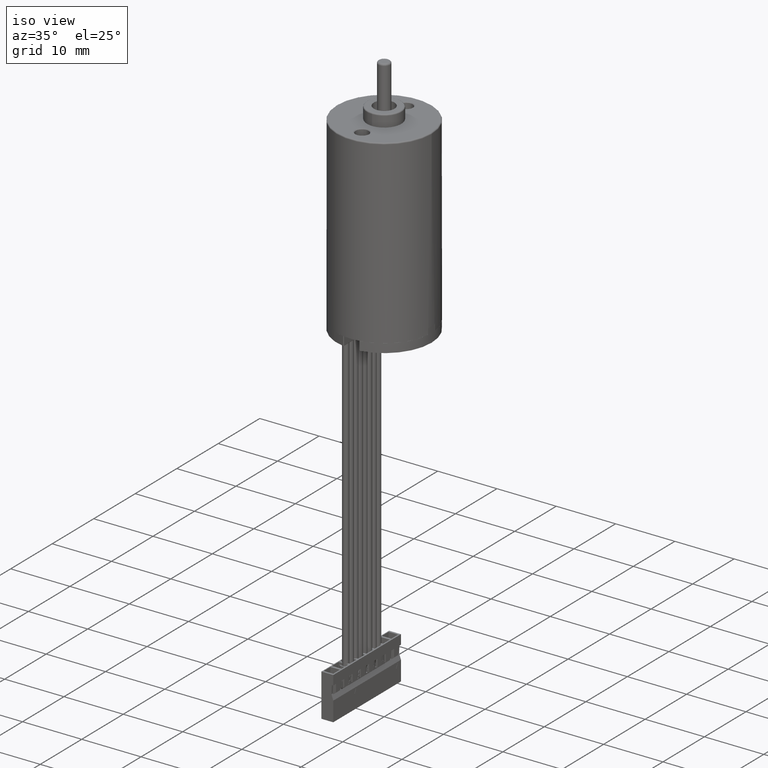
[diagram: clean part render]
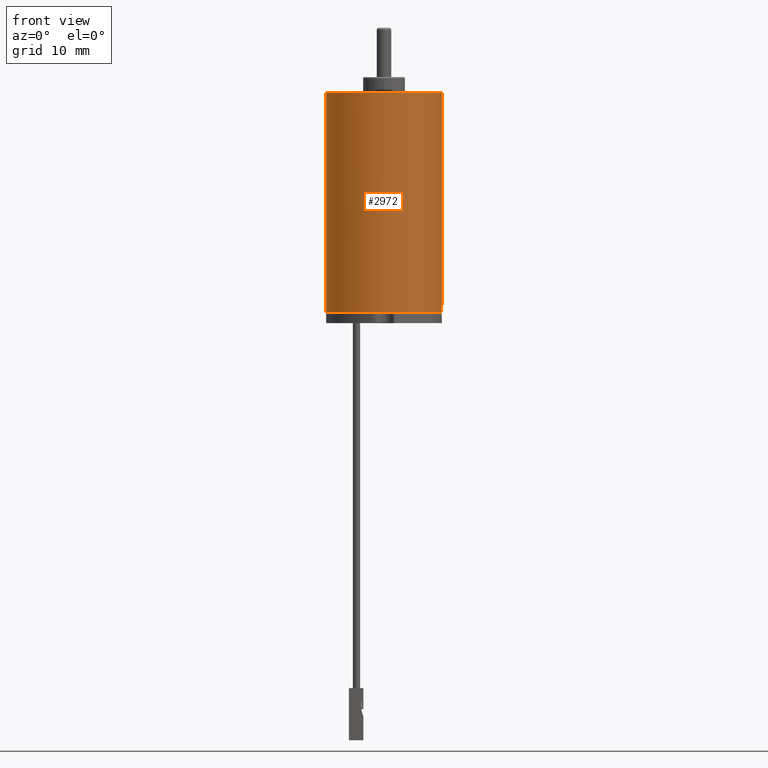
[diagram: tour spotlight — one face highlighted and labeled with its STEP entity id]
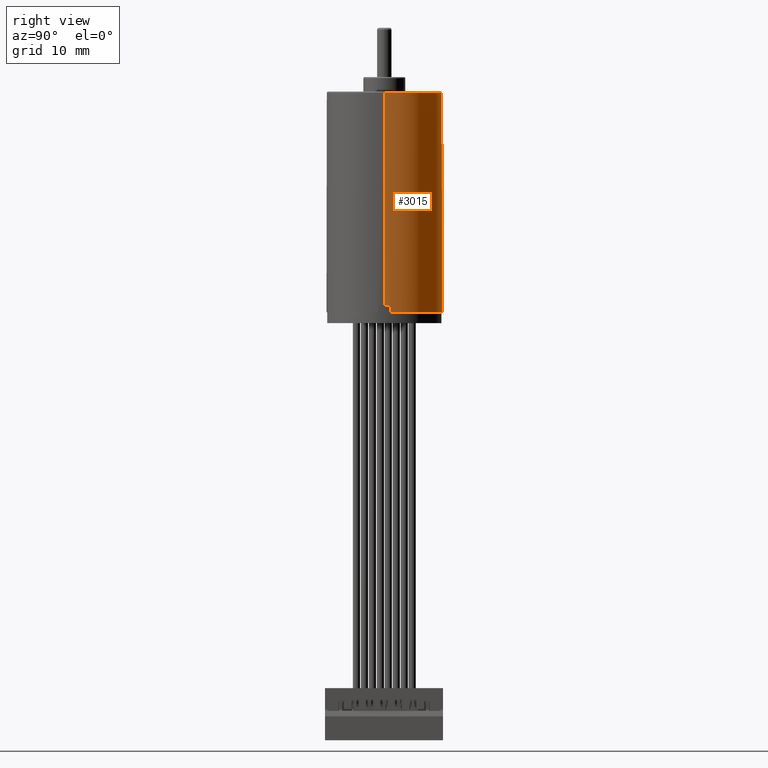
[diagram: tour spotlight — one face highlighted and labeled with its STEP entity id]
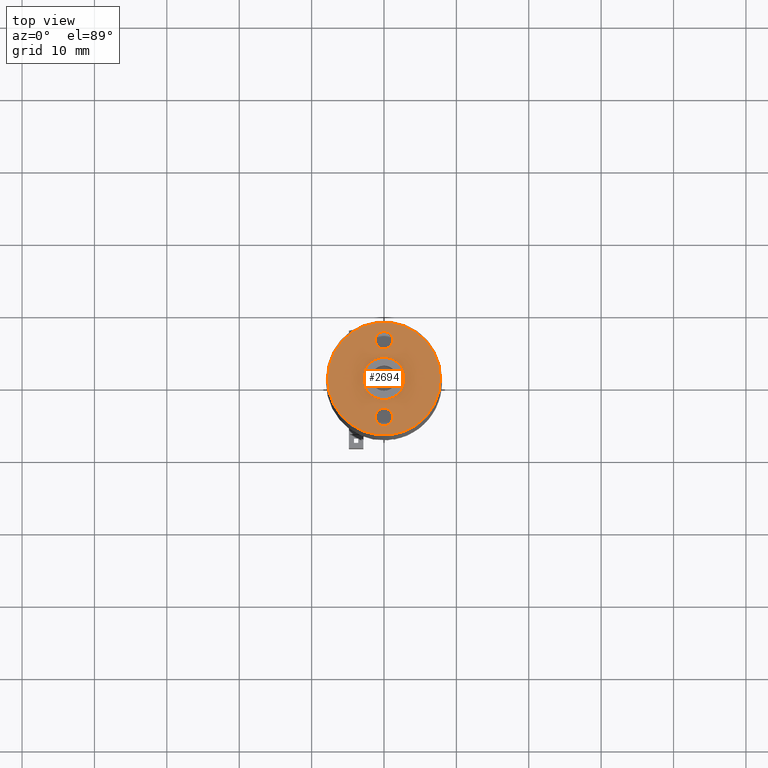
[diagram: tour spotlight — one face highlighted and labeled with its STEP entity id]
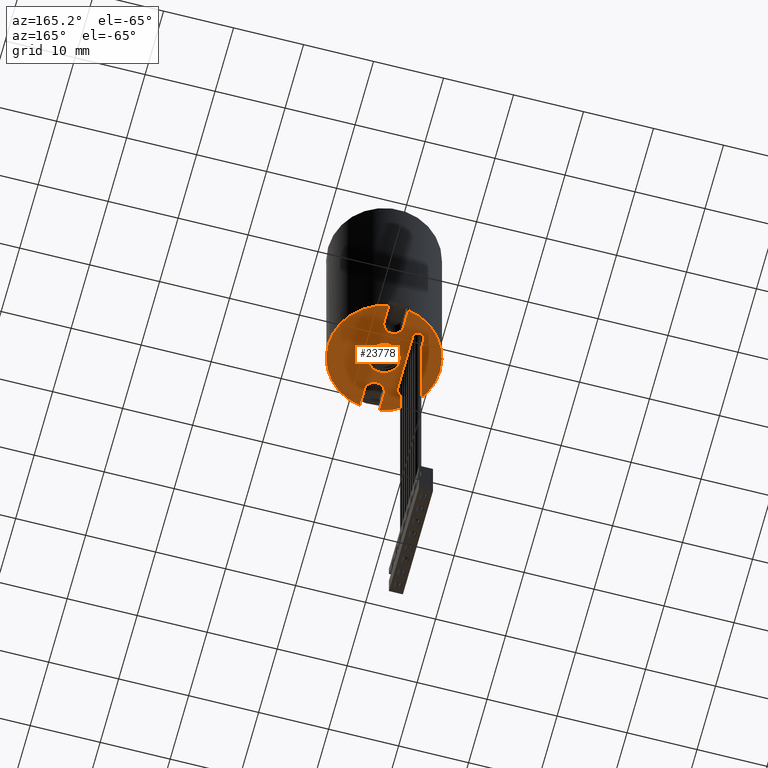
[diagram: tour spotlight — one face highlighted and labeled with its STEP entity id]
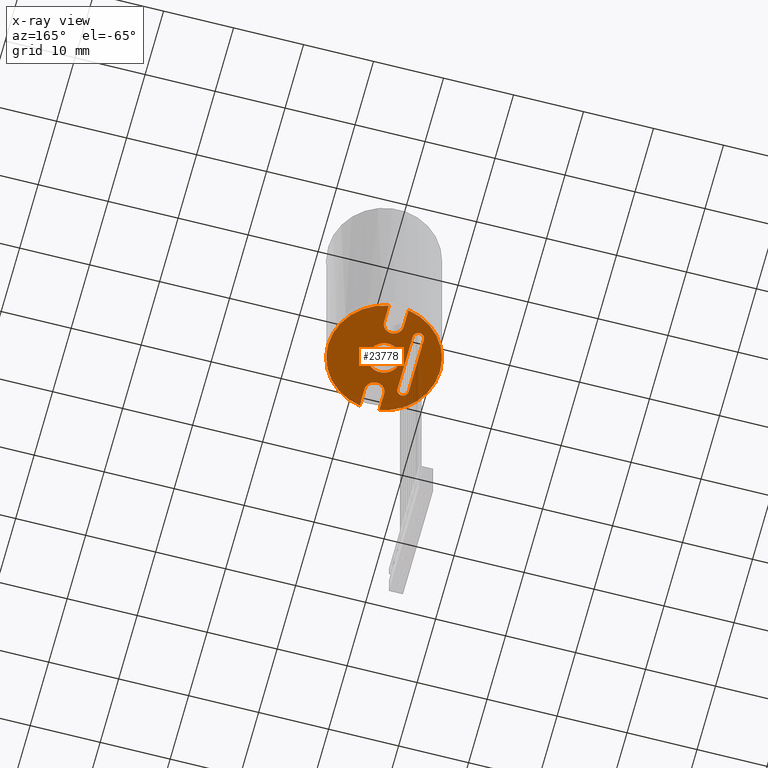
[diagram: x-ray of the same camera — body ghosted, this tour face saturated]
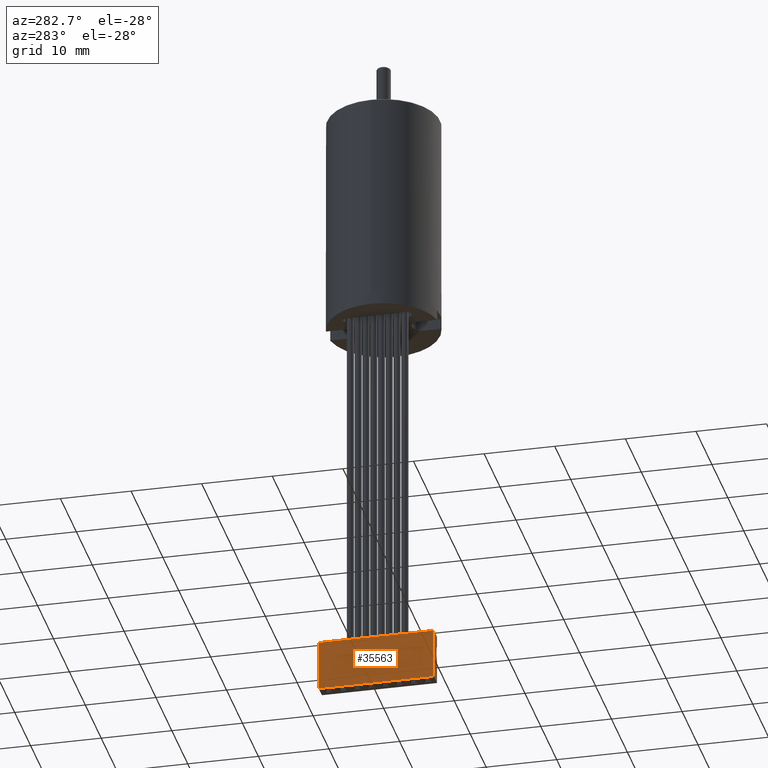
[diagram: tour spotlight — one face highlighted and labeled with its STEP entity id]
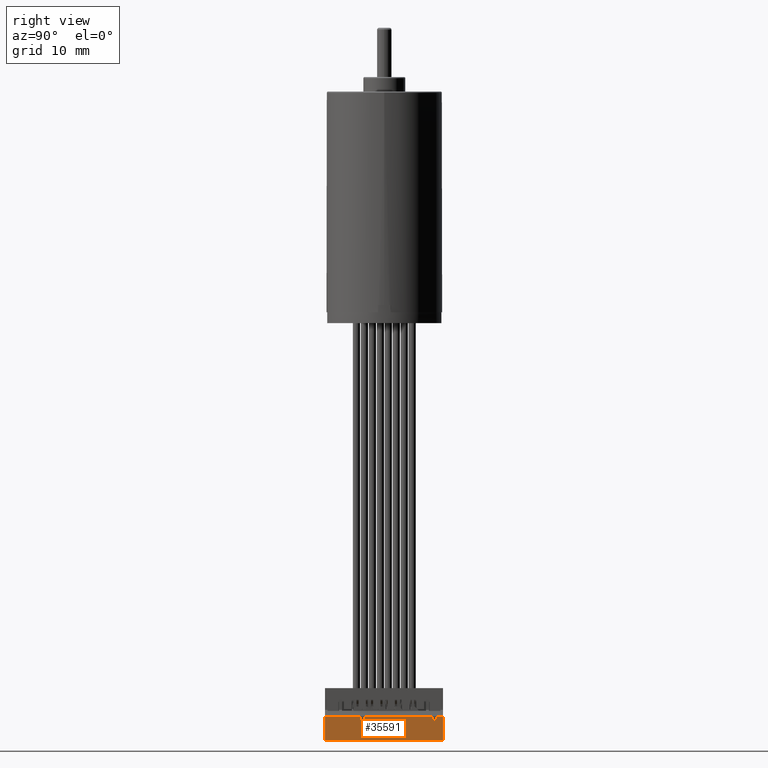
[diagram: tour spotlight — one face highlighted and labeled with its STEP entity id]
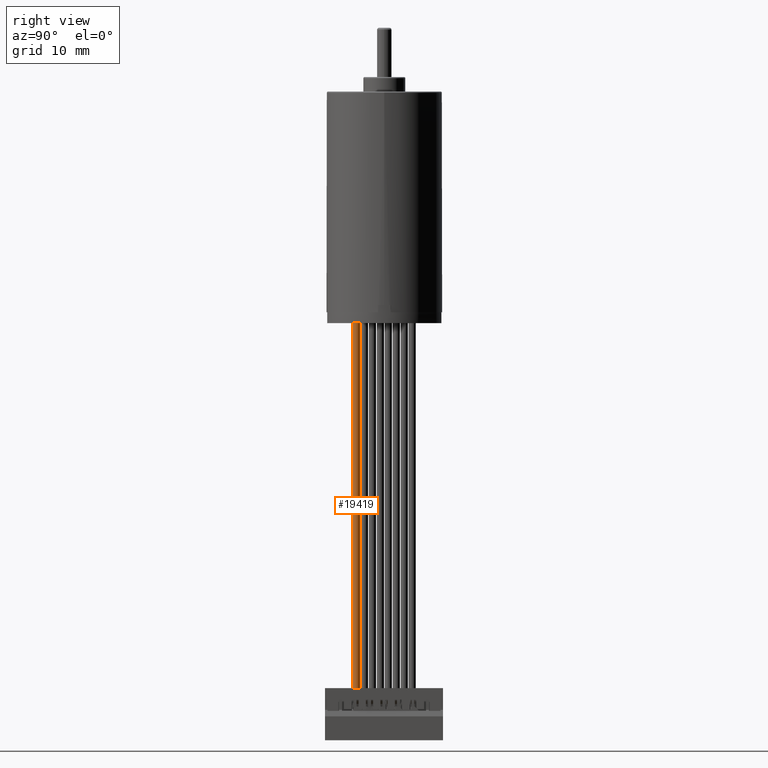
[diagram: tour spotlight — one face highlighted and labeled with its STEP entity id]
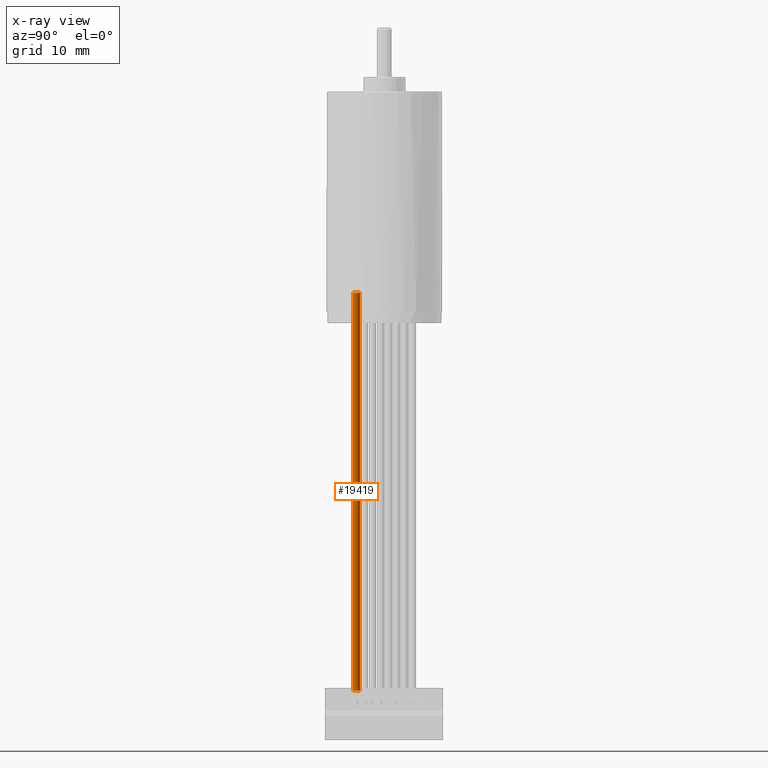
[diagram: x-ray of the same camera — body ghosted, this tour face saturated]
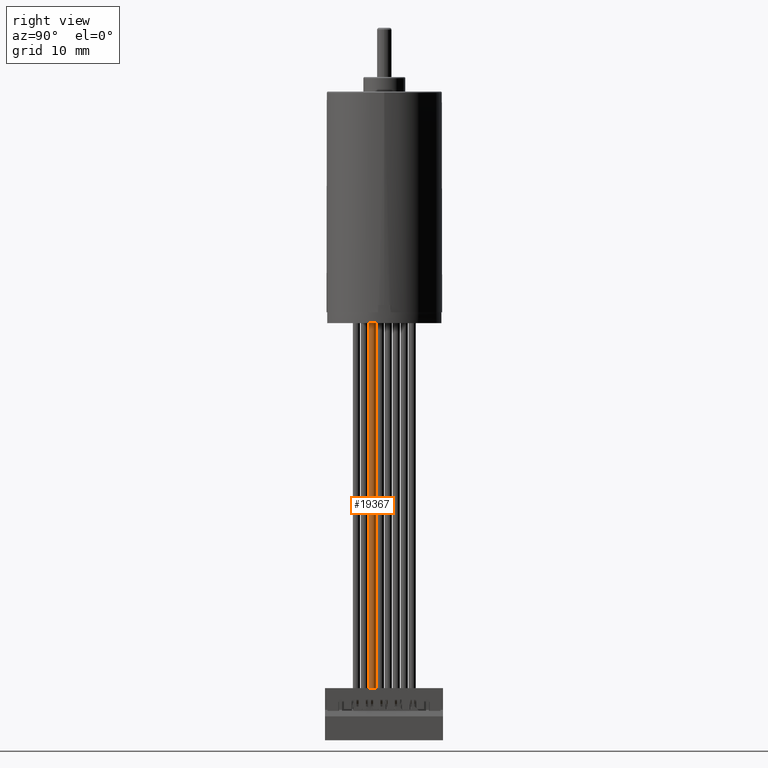
[diagram: tour spotlight — one face highlighted and labeled with its STEP entity id]
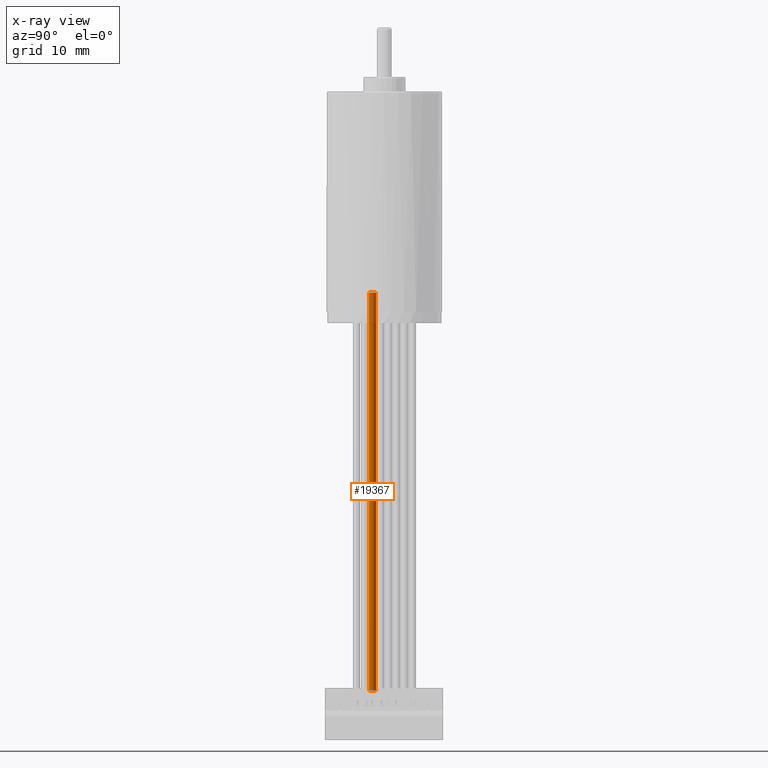
[diagram: x-ray of the same camera — body ghosted, this tour face saturated]
A machine part: a face-by-face anatomy tour. The part has 2217 B-rep faces; the first image is the clean iso view, then the 8 largest visible faces are spotlighted one at a time (largest first), each with its STEP entity span.

Face 1 — front view, entity #2972. In plain terms, the highlighted cylindrical surface (partial cylindrical patch) has radius 8 mm, axis along (0, 0, -1).
Definition (entity closure, byte-faithful):
#2396=CARTESIAN_POINT('',(0.E0,0.E0,3.05E1));
#2397=DIRECTION('',(0.E0,0.E0,1.E0));
#2398=DIRECTION('',(-9.936517247004E-1,-1.125E-1,0.E0));
#2399=AXIS2_PLACEMENT_3D('',#2396,#2397,#2398);
#2401=CARTESIAN_POINT('',(0.E0,0.E0,2.E-1));
#2402=DIRECTION('',(0.E0,0.E0,-1.E0));
#2403=DIRECTION('',(1.E0,0.E0,0.E0));
#2404=AXIS2_PLACEMENT_3D('',#2401,#2402,#2403);
#2406=DIRECTION('',(0.E0,1.080567177454E-13,1.E0));
#2407=VECTOR('',#2406,2.93E1);
#2408=CARTESIAN_POINT('',(-8.E0,-3.165082112500E-12,2.E-1));
#2409=LINE('',#2408,#2407);
#2410=CARTESIAN_POINT('',(0.E0,0.E0,2.95E1));
#2411=DIRECTION('',(0.E0,0.E0,1.E0));
#2412=DIRECTION('',(-1.E0,0.E0,0.E0));
#2413=AXIS2_PLACEMENT_3D('',#2410,#2411,#2412);
#2415=DIRECTION('',(0.E0,0.E0,1.E0));
#2416=VECTOR('',#2415,1.E0);
#2417=CARTESIAN_POINT('',(-7.949213797603E0,-9.E-1,2.95E1));
#2418=LINE('',#2417,#2416);
#2434=DIRECTION('',(0.E0,-1.044533221470E-13,1.E0));
#2435=VECTOR('',#2434,3.03E1);
#2436=CARTESIAN_POINT('',(8.E0,3.163955943615E-12,2.E-1));
#2437=LINE('',#2436,#2435);
#2581=CARTESIAN_POINT('',(-7.949213797603E0,-9.E-1,3.05E1));
#2583=VERTEX_POINT('',#2581);
#2590=CARTESIAN_POINT('',(-8.E0,0.E0,2.95E1));
#2592=VERTEX_POINT('',#2590);
#2593=CARTESIAN_POINT('',(-7.949213797603E0,-9.E-1,2.95E1));
#2594=VERTEX_POINT('',#2593);
#2599=CARTESIAN_POINT('',(8.E0,0.E0,3.05E1));
#2600=VERTEX_POINT('',#2599);
#2613=CARTESIAN_POINT('',(-8.E0,0.E0,2.E-1));
#2614=CARTESIAN_POINT('',(8.E0,0.E0,2.E-1));
#2615=VERTEX_POINT('',#2613);
#2616=VERTEX_POINT('',#2614);
#2955=CARTESIAN_POINT('',(0.E0,0.E0,0.E0));
#2956=DIRECTION('',(0.E0,0.E0,1.E0));
#2957=DIRECTION('',(1.E0,0.E0,0.E0));
#2958=AXIS2_PLACEMENT_3D('',#2955,#2956,#2957);
#2959=CYLINDRICAL_SURFACE('',#2958,8.E0);
#2961=ORIENTED_EDGE('',*,*,#2960,.T.);
#2963=ORIENTED_EDGE('',*,*,#2962,.T.);
#2965=ORIENTED_EDGE('',*,*,#2964,.T.);
#2966=ORIENTED_EDGE('',*,*,#2947,.T.);
#2967=ORIENTED_EDGE('',*,*,#2936,.T.);
#2969=ORIENTED_EDGE('',*,*,#2968,.F.);
#2970=EDGE_LOOP('',(#2961,#2963,#2965,#2966,#2967,#2969));
#2971=FACE_OUTER_BOUND('',#2970,.F.);
#2972=ADVANCED_FACE('',(#2971),#2959,.T.);
#2400=CIRCLE('',#2399,8.E0);
#2405=CIRCLE('',#2404,8.E0);
#2414=CIRCLE('',#2413,8.E0);
#2936=EDGE_CURVE('',#2583,#2600,#2400,.T.);
#2947=EDGE_CURVE('',#2594,#2583,#2418,.T.);
#2960=EDGE_CURVE('',#2616,#2615,#2405,.T.);
#2962=EDGE_CURVE('',#2615,#2592,#2409,.T.);
#2964=EDGE_CURVE('',#2592,#2594,#2414,.T.);
#2968=EDGE_CURVE('',#2616,#2600,#2437,.T.);

Face 2 — right view, entity #3015. In plain terms, the highlighted cylindrical surface (partial cylindrical patch) has radius 8 mm, axis along (0, 0, -1).
Definition (entity closure, byte-faithful):
#2391=CARTESIAN_POINT('',(0.E0,0.E0,3.05E1));
#2392=DIRECTION('',(0.E0,0.E0,1.E0));
#2393=DIRECTION('',(1.E0,0.E0,0.E0));
#2394=AXIS2_PLACEMENT_3D('',#2391,#2392,#2393);
#2406=DIRECTION('',(0.E0,1.080567177454E-13,1.E0));
#2407=VECTOR('',#2406,2.93E1);
#2408=CARTESIAN_POINT('',(-8.E0,-3.165082112500E-12,2.E-1));
#2409=LINE('',#2408,#2407);
#2429=CARTESIAN_POINT('',(0.E0,0.E0,2.E-1));
#2430=DIRECTION('',(0.E0,0.E0,-1.E0));
#2431=DIRECTION('',(-1.E0,0.E0,0.E0));
#2432=AXIS2_PLACEMENT_3D('',#2429,#2430,#2431);
#2434=DIRECTION('',(0.E0,-1.044533221470E-13,1.E0));
#2435=VECTOR('',#2434,3.03E1);
#2436=CARTESIAN_POINT('',(8.E0,3.163955943615E-12,2.E-1));
#2437=LINE('',#2436,#2435);
#2438=DIRECTION('',(0.E0,0.E0,1.E0));
#2439=VECTOR('',#2438,1.E0);
#2440=CARTESIAN_POINT('',(-7.949213797603E0,9.E-1,2.95E1));
#2441=LINE('',#2440,#2439);
#2442=CARTESIAN_POINT('',(0.E0,0.E0,2.95E1));
#2443=DIRECTION('',(0.E0,0.E0,1.E0));
#2444=DIRECTION('',(-9.936517247004E-1,1.125E-1,0.E0));
#2445=AXIS2_PLACEMENT_3D('',#2442,#2443,#2444);
#2586=CARTESIAN_POINT('',(-7.949213797603E0,9.E-1,3.05E1));
#2588=VERTEX_POINT('',#2586);
#2589=CARTESIAN_POINT('',(-7.949213797603E0,9.E-1,2.95E1));
#2590=CARTESIAN_POINT('',(-8.E0,0.E0,2.95E1));
#2591=VERTEX_POINT('',#2589);
#2592=VERTEX_POINT('',#2590);
#2599=CARTESIAN_POINT('',(8.E0,0.E0,3.05E1));
#2600=VERTEX_POINT('',#2599);
#2613=CARTESIAN_POINT('',(-8.E0,0.E0,2.E-1));
#2614=CARTESIAN_POINT('',(8.E0,0.E0,2.E-1));
#2615=VERTEX_POINT('',#2613);
#2616=VERTEX_POINT('',#2614);
#3000=CARTESIAN_POINT('',(0.E0,0.E0,0.E0));
#3001=DIRECTION('',(0.E0,0.E0,1.E0));
#3002=DIRECTION('',(1.E0,0.E0,0.E0));
#3003=AXIS2_PLACEMENT_3D('',#3000,#3001,#3002);
#3004=CYLINDRICAL_SURFACE('',#3003,8.E0);
#3005=ORIENTED_EDGE('',*,*,#2994,.T.);
#3006=ORIENTED_EDGE('',*,*,#2968,.T.);
#3007=ORIENTED_EDGE('',*,*,#2934,.T.);
#3009=ORIENTED_EDGE('',*,*,#3008,.F.);
#3011=ORIENTED_EDGE('',*,*,#3010,.T.);
#3012=ORIENTED_EDGE('',*,*,#2962,.F.);
#3013=EDGE_LOOP('',(#3005,#3006,#3007,#3009,#3011,#3012));
#3014=FACE_OUTER_BOUND('',#3013,.F.);
#3015=ADVANCED_FACE('',(#3014),#3004,.T.);
#2395=CIRCLE('',#2394,8.E0);
#2433=CIRCLE('',#2432,8.E0);
#2446=CIRCLE('',#2445,8.E0);
#2934=EDGE_CURVE('',#2600,#2588,#2395,.T.);
#2962=EDGE_CURVE('',#2615,#2592,#2409,.T.);
#2968=EDGE_CURVE('',#2616,#2600,#2437,.T.);
#2994=EDGE_CURVE('',#2615,#2616,#2433,.T.);
#3008=EDGE_CURVE('',#2591,#2588,#2441,.T.);
#3010=EDGE_CURVE('',#2591,#2592,#2446,.T.);

Face 3 — top view, entity #2694. In plain terms, the highlighted planar face has unit normal (0, 0, -1).
Definition (entity closure, byte-faithful):
#2163=CARTESIAN_POINT('',(0.E0,0.E0,0.E0));
#2164=DIRECTION('',(0.E0,0.E0,-1.E0));
#2165=DIRECTION('',(0.E0,1.E0,0.E0));
#2166=AXIS2_PLACEMENT_3D('',#2163,#2164,#2165);
#2168=CARTESIAN_POINT('',(0.E0,0.E0,0.E0));
#2169=DIRECTION('',(0.E0,0.E0,-1.E0));
#2170=DIRECTION('',(0.E0,-1.E0,0.E0));
#2171=AXIS2_PLACEMENT_3D('',#2168,#2169,#2170);
#2173=CARTESIAN_POINT('',(0.E0,0.E0,0.E0));
#2174=DIRECTION('',(0.E0,0.E0,-1.E0));
#2175=DIRECTION('',(-1.E0,0.E0,0.E0));
#2176=AXIS2_PLACEMENT_3D('',#2173,#2174,#2175);
#2178=CARTESIAN_POINT('',(0.E0,0.E0,0.E0));
#2179=DIRECTION('',(0.E0,0.E0,-1.E0));
#2180=DIRECTION('',(1.E0,0.E0,0.E0));
#2181=AXIS2_PLACEMENT_3D('',#2178,#2179,#2180);
#2183=CARTESIAN_POINT('',(0.E0,5.3E0,0.E0));
#2184=DIRECTION('',(0.E0,0.E0,1.E0));
#2185=DIRECTION('',(0.E0,-1.E0,0.E0));
#2186=AXIS2_PLACEMENT_3D('',#2183,#2184,#2185);
#2188=CARTESIAN_POINT('',(0.E0,5.3E0,0.E0));
#2189=DIRECTION('',(0.E0,0.E0,1.E0));
#2190=DIRECTION('',(0.E0,1.E0,0.E0));
#2191=AXIS2_PLACEMENT_3D('',#2188,#2189,#2190);
#2193=CARTESIAN_POINT('',(0.E0,-5.3E0,0.E0));
#2194=DIRECTION('',(0.E0,0.E0,1.E0));
#2195=DIRECTION('',(0.E0,-1.E0,0.E0));
#2196=AXIS2_PLACEMENT_3D('',#2193,#2194,#2195);
#2198=CARTESIAN_POINT('',(0.E0,-5.3E0,0.E0));
#2199=DIRECTION('',(0.E0,0.E0,1.E0));
#2200=DIRECTION('',(0.E0,1.E0,0.E0));
#2201=AXIS2_PLACEMENT_3D('',#2198,#2199,#2200);
#2561=CARTESIAN_POINT('',(0.E0,2.9E0,0.E0));
#2562=CARTESIAN_POINT('',(0.E0,-2.9E0,0.E0));
#2563=VERTEX_POINT('',#2561);
#2564=VERTEX_POINT('',#2562);
#2609=CARTESIAN_POINT('',(-7.8E0,0.E0,0.E0));
#2610=CARTESIAN_POINT('',(7.8E0,0.E0,0.E0));
#2611=VERTEX_POINT('',#2609);
#2612=VERTEX_POINT('',#2610);
#2633=CARTESIAN_POINT('',(0.E0,4.1E0,0.E0));
#2634=CARTESIAN_POINT('',(0.E0,6.5E0,0.E0));
#2635=VERTEX_POINT('',#2633);
#2636=VERTEX_POINT('',#2634);
#2641=CARTESIAN_POINT('',(0.E0,-6.5E0,0.E0));
#2642=CARTESIAN_POINT('',(0.E0,-4.1E0,0.E0));
#2643=VERTEX_POINT('',#2641);
#2644=VERTEX_POINT('',#2642);
#2665=CARTESIAN_POINT('',(0.E0,0.E0,0.E0));
#2666=DIRECTION('',(0.E0,0.E0,1.E0));
#2667=DIRECTION('',(1.E0,0.E0,0.E0));
#2668=AXIS2_PLACEMENT_3D('',#2665,#2666,#2667);
#2669=PLANE('',#2668);
#2671=ORIENTED_EDGE('',*,*,#2670,.F.);
#2673=ORIENTED_EDGE('',*,*,#2672,.F.);
#2674=EDGE_LOOP('',(#2671,#2673));
#2675=FACE_OUTER_BOUND('',#2674,.F.);
#2677=ORIENTED_EDGE('',*,*,#2676,.T.);
#2679=ORIENTED_EDGE('',*,*,#2678,.T.);
#2680=EDGE_LOOP('',(#2677,#2679));
#2681=FACE_BOUND('',#2680,.F.);
#2683=ORIENTED_EDGE('',*,*,#2682,.F.);
#2685=ORIENTED_EDGE('',*,*,#2684,.F.);
#2686=EDGE_LOOP('',(#2683,#2685));
#2687=FACE_BOUND('',#2686,.F.);
#2689=ORIENTED_EDGE('',*,*,#2688,.F.);
#2691=ORIENTED_EDGE('',*,*,#2690,.F.);
#2692=EDGE_LOOP('',(#2689,#2691));
#2693=FACE_BOUND('',#2692,.F.);
#2694=ADVANCED_FACE('',(#2675,#2681,#2687,#2693),#2669,.F.);
#2167=CIRCLE('',#2166,2.9E0);
#2172=CIRCLE('',#2171,2.9E0);
#2177=CIRCLE('',#2176,7.8E0);
#2182=CIRCLE('',#2181,7.8E0);
#2187=CIRCLE('',#2186,1.2E0);
#2192=CIRCLE('',#2191,1.2E0);
#2197=CIRCLE('',#2196,1.2E0);
#2202=CIRCLE('',#2201,1.2E0);
#2670=EDGE_CURVE('',#2611,#2612,#2177,.T.);
#2672=EDGE_CURVE('',#2612,#2611,#2182,.T.);
#2676=EDGE_CURVE('',#2563,#2564,#2167,.T.);
#2678=EDGE_CURVE('',#2564,#2563,#2172,.T.);
#2682=EDGE_CURVE('',#2635,#2636,#2187,.T.);
#2684=EDGE_CURVE('',#2636,#2635,#2192,.T.);
#2688=EDGE_CURVE('',#2643,#2644,#2197,.T.);
#2690=EDGE_CURVE('',#2644,#2643,#2202,.T.);

Face 4 — auxiliary view, entity #23778. An x-ray twin of the same camera follows (body ghosted, this face saturated) — the face is partly hidden behind the body. In plain terms, the highlighted planar face has unit normal (0, 0, -1).
Definition (entity closure, byte-faithful):
#22067=CARTESIAN_POINT('',(0.E0,0.E0,1.5E0));
#22068=DIRECTION('',(0.E0,0.E0,1.E0));
#22069=DIRECTION('',(1.E0,0.E0,0.E0));
#22070=AXIS2_PLACEMENT_3D('',#22067,#22068,#22069);
#22072=CARTESIAN_POINT('',(0.E0,0.E0,1.5E0));
#22073=DIRECTION('',(0.E0,0.E0,1.E0));
#22074=DIRECTION('',(-1.E0,0.E0,0.E0));
#22075=AXIS2_PLACEMENT_3D('',#22072,#22073,#22074);
#22077=CARTESIAN_POINT('',(-3.8E0,4.1E0,1.5E0));
#22078=DIRECTION('',(0.E0,0.E0,-1.E0));
#22079=DIRECTION('',(-1.E0,0.E0,0.E0));
#22080=AXIS2_PLACEMENT_3D('',#22077,#22078,#22079);
#22082=DIRECTION('',(5.203750709504E-12,1.E0,0.E0));
#22083=VECTOR('',#22082,8.199999999946E0);
#22084=CARTESIAN_POINT('',(-4.599999999966E0,-4.099999999977E0,1.5E0));
#22085=LINE('',#22084,#22083);
#22086=CARTESIAN_POINT('',(-3.8E0,-4.1E0,1.5E0));
#22087=DIRECTION('',(0.E0,0.E0,-1.E0));
#22088=DIRECTION('',(1.E0,0.E0,0.E0));
#22089=AXIS2_PLACEMENT_3D('',#22086,#22087,#22088);
#22091=DIRECTION('',(-5.203696552284E-12,-1.E0,0.E0));
#22092=VECTOR('',#22091,8.199999999946E0);
#22093=CARTESIAN_POINT('',(-3.000000000034E0,4.099999999977E0,1.5E0));
#22094=LINE('',#22093,#22092);
#22095=CARTESIAN_POINT('',(1.4E0,7.774959806970E0,1.5E0));
#22096=DIRECTION('',(0.E0,0.E0,1.E0));
#22097=DIRECTION('',(1.772151898734E-1,9.841721274646E-1,0.E0));
#22098=AXIS2_PLACEMENT_3D('',#22095,#22096,#22097);
#22100=CARTESIAN_POINT('',(1.4E0,-7.774959806970E0,1.5E0));
#22101=DIRECTION('',(0.E0,0.E0,1.E0));
#22102=DIRECTION('',(0.E0,-1.E0,0.E0));
#22103=AXIS2_PLACEMENT_3D('',#22100,#22101,#22102);
#22105=DIRECTION('',(1.936776571471E-12,-1.E0,0.E0));
#22106=VECTOR('',#22105,2.574959806968E0);
#22107=CARTESIAN_POINT('',(1.399999999995E0,-5.300000000002E0,1.5E0));
#22108=LINE('',#22107,#22106);
#22109=CARTESIAN_POINT('',(0.E0,-5.3E0,1.5E0));
#22110=DIRECTION('',(0.E0,0.E0,-1.E0));
#22111=DIRECTION('',(-1.E0,0.E0,0.E0));
#22112=AXIS2_PLACEMENT_3D('',#22109,#22110,#22111);
#22114=DIRECTION('',(5.107191862068E-12,1.E0,0.E0));
#22115=VECTOR('',#22114,2.574959806966E0);
#22116=CARTESIAN_POINT('',(-1.4E0,-7.874959806970E0,1.5E0));
#22117=LINE('',#22116,#22115);
#22118=CARTESIAN_POINT('',(-1.4E0,-7.774959806970E0,1.5E0));
#22119=DIRECTION('',(0.E0,0.E0,1.E0));
#22120=DIRECTION('',(-1.772151898734E-1,-9.841721274646E-1,0.E0));
#22121=AXIS2_PLACEMENT_3D('',#22118,#22119,#22120);
#22123=CARTESIAN_POINT('',(-1.4E0,7.774959806970E0,1.5E0));
#22124=DIRECTION('',(0.E0,0.E0,1.E0));
#22125=DIRECTION('',(0.E0,1.E0,0.E0));
#22126=AXIS2_PLACEMENT_3D('',#22123,#22124,#22125);
#22128=DIRECTION('',(-1.936862803732E-12,1.E0,0.E0));
#22129=VECTOR('',#22128,2.574959806968E0);
#22130=CARTESIAN_POINT('',(-1.399999999995E0,5.300000000002E0,1.5E0));
#22131=LINE('',#22130,#22129);
#22132=CARTESIAN_POINT('',(0.E0,5.3E0,1.5E0));
#22133=DIRECTION('',(0.E0,0.E0,-1.E0));
#22134=DIRECTION('',(1.E0,0.E0,0.E0));
#22135=AXIS2_PLACEMENT_3D('',#22132,#22133,#22134);
#22137=DIRECTION('',(-5.107191862068E-12,-1.E0,0.E0));
#22138=VECTOR('',#22137,2.574959806966E0);
#22139=CARTESIAN_POINT('',(1.4E0,7.874959806970E0,1.5E0));
#22140=LINE('',#22139,#22138);
#22476=CARTESIAN_POINT('',(0.E0,0.E0,1.5E0));
#22477=DIRECTION('',(0.E0,0.E0,1.E0));
#22478=DIRECTION('',(-1.772151898734E-1,9.841721274646E-1,0.E0));
#22479=AXIS2_PLACEMENT_3D('',#22476,#22477,#22478);
#22508=CARTESIAN_POINT('',(0.E0,0.E0,1.5E0));
#22509=DIRECTION('',(0.E0,0.E0,1.E0));
#22510=DIRECTION('',(1.772151898734E-1,-9.841721274646E-1,0.E0));
#22511=AXIS2_PLACEMENT_3D('',#22508,#22509,#22510);
#23258=CARTESIAN_POINT('',(2.25E0,0.E0,1.5E0));
#23259=CARTESIAN_POINT('',(-2.25E0,0.E0,1.5E0));
#23260=VERTEX_POINT('',#23258);
#23261=VERTEX_POINT('',#23259);
#23390=CARTESIAN_POINT('',(-4.6E0,4.1E0,1.5E0));
#23391=CARTESIAN_POINT('',(-3.E0,4.1E0,1.5E0));
#23392=VERTEX_POINT('',#23390);
#23393=VERTEX_POINT('',#23391);
#23398=CARTESIAN_POINT('',(-3.000000000077E0,-4.099999999969E0,1.5E0));
#23399=VERTEX_POINT('',#23398);
#23402=CARTESIAN_POINT('',(-4.6E0,-4.1E0,1.5E0));
#23403=VERTEX_POINT('',#23402);
#23410=CARTESIAN_POINT('',(1.417721518987E0,7.873377019717E0,1.5E0));
#23411=VERTEX_POINT('',#23410);
#23412=CARTESIAN_POINT('',(1.4E0,7.874959806970E0,1.5E0));
#23413=VERTEX_POINT('',#23412);
#23416=CARTESIAN_POINT('',(1.399999999987E0,5.300000000004E0,1.5E0));
#23417=VERTEX_POINT('',#23416);
#23420=CARTESIAN_POINT('',(-1.4E0,5.3E0,1.5E0));
#23421=VERTEX_POINT('',#23420);
#23426=CARTESIAN_POINT('',(-1.4E0,7.874959806970E0,1.5E0));
#23427=VERTEX_POINT('',#23426);
#23432=CARTESIAN_POINT('',(-1.417721518987E0,7.873377019717E0,1.5E0));
#23433=VERTEX_POINT('',#23432);
#23438=CARTESIAN_POINT('',(-1.417721518987E0,-7.873377019717E0,1.5E0));
#23439=VERTEX_POINT('',#23438);
#23440=CARTESIAN_POINT('',(-1.4E0,-7.874959806970E0,1.5E0));
#23441=VERTEX_POINT('',#23440);
#23444=CARTESIAN_POINT('',(-1.399999999987E0,-5.300000000004E0,1.5E0));
#23445=VERTEX_POINT('',#23444);
#23448=CARTESIAN_POINT('',(1.4E0,-5.3E0,1.5E0));
#23449=VERTEX_POINT('',#23448);
#23454=CARTESIAN_POINT('',(1.4E0,-7.874959806970E0,1.5E0));
#23455=VERTEX_POINT('',#23454);
#23460=CARTESIAN_POINT('',(1.417721518987E0,-7.873377019717E0,1.5E0));
#23461=VERTEX_POINT('',#23460);
#23734=CARTESIAN_POINT('',(0.E0,0.E0,1.5E0));
#23735=DIRECTION('',(0.E0,0.E0,1.E0));
#23736=DIRECTION('',(1.E0,0.E0,0.E0));
#23737=AXIS2_PLACEMENT_3D('',#23734,#23735,#23736);
#23738=PLANE('',#23737);
#23740=ORIENTED_EDGE('',*,*,#23739,.F.);
#23742=ORIENTED_EDGE('',*,*,#23741,.F.);
#23744=ORIENTED_EDGE('',*,*,#23743,.F.);
#23746=ORIENTED_EDGE('',*,*,#23745,.F.);
#23748=ORIENTED_EDGE('',*,*,#23747,.F.);
#23750=ORIENTED_EDGE('',*,*,#23749,.F.);
#23752=ORIENTED_EDGE('',*,*,#23751,.F.);
#23754=ORIENTED_EDGE('',*,*,#23753,.F.);
#23755=ORIENTED_EDGE('',*,*,#23680,.F.);
#23756=ORIENTED_EDGE('',*,*,#23713,.F.);
#23757=ORIENTED_EDGE('',*,*,#23724,.F.);
#23759=ORIENTED_EDGE('',*,*,#23758,.F.);
#23760=EDGE_LOOP('',(#23740,#23742,#23744,#23746,#23748,#23750,#23752,#23754,
#23755,#23756,#23757,#23759));
#23761=FACE_OUTER_BOUND('',#23760,.F.);
#23763=ORIENTED_EDGE('',*,*,#23762,.F.);
#23765=ORIENTED_EDGE('',*,*,#23764,.F.);
#23767=ORIENTED_EDGE('',*,*,#23766,.F.);
#23769=ORIENTED_EDGE('',*,*,#23768,.F.);
#23770=EDGE_LOOP('',(#23763,#23765,#23767,#23769));
#23771=FACE_BOUND('',#23770,.F.);
#23773=ORIENTED_EDGE('',*,*,#23772,.T.);
#23775=ORIENTED_EDGE('',*,*,#23774,.T.);
#23776=EDGE_LOOP('',(#23773,#23775));
#23777=FACE_BOUND('',#23776,.F.);
#23778=ADVANCED_FACE('',(#23761,#23771,#23777),#23738,.T.);
#22071=CIRCLE('',#22070,2.25E0);
#22076=CIRCLE('',#22075,2.25E0);
#22081=CIRCLE('',#22080,8.E-1);
#22090=CIRCLE('',#22089,8.E-1);
#22099=CIRCLE('',#22098,1.E-1);
#22104=CIRCLE('',#22103,1.E-1);
#22113=CIRCLE('',#22112,1.4E0);
#22122=CIRCLE('',#22121,1.E-1);
#22127=CIRCLE('',#22126,1.E-1);
#22136=CIRCLE('',#22135,1.4E0);
#22480=CIRCLE('',#22479,8.E0);
#22512=CIRCLE('',#22511,8.E0);
#23680=EDGE_CURVE('',#23427,#23433,#22127,.T.);
#23713=EDGE_CURVE('',#23421,#23427,#22131,.T.);
#23724=EDGE_CURVE('',#23417,#23421,#22136,.T.);
#23739=EDGE_CURVE('',#23411,#23413,#22099,.T.);
#23741=EDGE_CURVE('',#23461,#23411,#22512,.T.);
#23743=EDGE_CURVE('',#23455,#23461,#22104,.T.);
#23745=EDGE_CURVE('',#23449,#23455,#22108,.T.);
#23747=EDGE_CURVE('',#23445,#23449,#22113,.T.);
#23749=EDGE_CURVE('',#23441,#23445,#22117,.T.);
#23751=EDGE_CURVE('',#23439,#23441,#22122,.T.);
#23753=EDGE_CURVE('',#23433,#23439,#22480,.T.);
#23758=EDGE_CURVE('',#23413,#23417,#22140,.T.);
#23762=EDGE_CURVE('',#23392,#23393,#22081,.T.);
#23764=EDGE_CURVE('',#23403,#23392,#22085,.T.);
#23766=EDGE_CURVE('',#23399,#23403,#22090,.T.);
#23768=EDGE_CURVE('',#23393,#23399,#22094,.T.);
#23772=EDGE_CURVE('',#23260,#23261,#22071,.T.);
#23774=EDGE_CURVE('',#23261,#23260,#22076,.T.);

Face 5 — auxiliary view, entity #35563. In plain terms, the highlighted planar face has unit normal (-1, 0, 0).
Definition (entity closure, byte-faithful):
#32275=DIRECTION('',(0.E0,0.E0,-1.E0));
#32276=VECTOR('',#32275,1.63E1);
#32277=CARTESIAN_POINT('',(2.E0,0.E0,1.63E1));
#32278=LINE('',#32277,#32276);
#32295=DIRECTION('',(0.E0,-1.E0,0.E0));
#32296=VECTOR('',#32295,7.2E0);
#32297=CARTESIAN_POINT('',(2.E0,7.2E0,1.63E1));
#32298=LINE('',#32297,#32296);
#32547=DIRECTION('',(0.E0,-1.E0,0.E0));
#32548=VECTOR('',#32547,7.2E0);
#32549=CARTESIAN_POINT('',(2.E0,7.2E0,0.E0));
#32550=LINE('',#32549,#32548);
#32551=DIRECTION('',(0.E0,0.E0,-1.E0));
#32552=VECTOR('',#32551,1.63E1);
#32553=CARTESIAN_POINT('',(2.E0,7.2E0,1.63E1));
#32554=LINE('',#32553,#32552);
#33629=CARTESIAN_POINT('',(2.E0,0.E0,0.E0));
#33630=VERTEX_POINT('',#33629);
#33631=CARTESIAN_POINT('',(2.E0,7.2E0,0.E0));
#33632=VERTEX_POINT('',#33631);
#33871=CARTESIAN_POINT('',(2.E0,7.2E0,1.63E1));
#33872=VERTEX_POINT('',#33871);
#33931=CARTESIAN_POINT('',(2.E0,0.E0,1.63E1));
#33932=VERTEX_POINT('',#33931);
#35552=CARTESIAN_POINT('',(2.E0,0.E0,0.E0));
#35553=DIRECTION('',(1.E0,0.E0,0.E0));
#35554=DIRECTION('',(0.E0,1.E0,0.E0));
#35555=AXIS2_PLACEMENT_3D('',#35552,#35553,#35554);
#35556=PLANE('',#35555);
#35557=ORIENTED_EDGE('',*,*,#34270,.T.);
#35558=ORIENTED_EDGE('',*,*,#35124,.F.);
#35559=ORIENTED_EDGE('',*,*,#35212,.F.);
#35560=ORIENTED_EDGE('',*,*,#35468,.T.);
#35561=EDGE_LOOP('',(#35557,#35558,#35559,#35560));
#35562=FACE_OUTER_BOUND('',#35561,.F.);
#35563=ADVANCED_FACE('',(#35562),#35556,.T.);
#34270=EDGE_CURVE('',#33632,#33630,#32550,.T.);
#35124=EDGE_CURVE('',#33932,#33630,#32278,.T.);
#35212=EDGE_CURVE('',#33872,#33932,#32298,.T.);
#35468=EDGE_CURVE('',#33872,#33632,#32554,.T.);

Face 6 — right view, entity #35591. In plain terms, the highlighted planar face has unit normal (1, 0, 0).
Definition (entity closure, byte-faithful):
#32287=DIRECTION('',(0.E0,1.E0,0.E0));
#32288=VECTOR('',#32287,3.3E0);
#32289=CARTESIAN_POINT('',(0.E0,3.9E0,1.63E1));
#32290=LINE('',#32289,#32288);
#32415=DIRECTION('',(0.E0,0.E0,-1.E0));
#32416=VECTOR('',#32415,1.63E1);
#32417=CARTESIAN_POINT('',(0.E0,7.2E0,1.63E1));
#32418=LINE('',#32417,#32416);
#32555=DIRECTION('',(0.E0,0.E0,-1.E0));
#32556=VECTOR('',#32555,1.63E1);
#32557=CARTESIAN_POINT('',(0.E0,3.9E0,1.63E1));
#32558=LINE('',#32557,#32556);
#32559=DIRECTION('',(0.E0,1.E0,0.E0));
#32560=VECTOR('',#32559,3.3E0);
#32561=CARTESIAN_POINT('',(0.E0,3.9E0,0.E0));
#32562=LINE('',#32561,#32560);
#32563=DIRECTION('',(0.E0,8.833308765689E-1,-4.6875E-1));
#32564=VECTOR('',#32563,7.999999999999E-1);
#32565=CARTESIAN_POINT('',(0.E0,4.1E0,1.525E0));
#32566=LINE('',#32565,#32564);
#32567=DIRECTION('',(0.E0,-8.833308765689E-1,-4.6875E-1));
#32568=VECTOR('',#32567,7.999999999999E-1);
#32569=CARTESIAN_POINT('',(0.E0,4.806664701255E0,1.15E0));
#32570=LINE('',#32569,#32568);
#32571=DIRECTION('',(0.E0,8.833308765689E-1,-4.6875E-1));
#32572=VECTOR('',#32571,7.999999999999E-1);
#32573=CARTESIAN_POINT('',(0.E0,4.1E0,1.1525E1));
#32574=LINE('',#32573,#32572);
#32575=DIRECTION('',(0.E0,-8.833308765689E-1,-4.6875E-1));
#32576=VECTOR('',#32575,7.999999999999E-1);
#32577=CARTESIAN_POINT('',(0.E0,4.806664701255E0,1.115E1));
#32578=LINE('',#32577,#32576);
#32579=DIRECTION('',(0.E0,-1.184237892934E-14,-1.E0));
#32580=VECTOR('',#32579,7.5E-1);
#32581=CARTESIAN_POINT('',(0.E0,4.1E0,1.525E0));
#32582=LINE('',#32581,#32580);
#32607=DIRECTION('',(0.E0,-1.184237892934E-14,-1.E0));
#32608=VECTOR('',#32607,7.5E-1);
#32609=CARTESIAN_POINT('',(0.E0,4.1E0,1.1525E1));
#32610=LINE('',#32609,#32608);
#33633=CARTESIAN_POINT('',(0.E0,7.2E0,0.E0));
#33634=VERTEX_POINT('',#33633);
#33635=CARTESIAN_POINT('',(0.E0,3.9E0,0.E0));
#33636=VERTEX_POINT('',#33635);
#33815=CARTESIAN_POINT('',(0.E0,3.9E0,1.63E1));
#33816=VERTEX_POINT('',#33815);
#33873=CARTESIAN_POINT('',(0.E0,7.2E0,1.63E1));
#33874=VERTEX_POINT('',#33873);
#33987=CARTESIAN_POINT('',(0.E0,4.1E0,1.525E0));
#33988=CARTESIAN_POINT('',(0.E0,4.1E0,7.75E-1));
#33989=VERTEX_POINT('',#33987);
#33990=VERTEX_POINT('',#33988);
#33991=CARTESIAN_POINT('',(0.E0,4.806664701255E0,1.15E0));
#33992=VERTEX_POINT('',#33991);
#33993=CARTESIAN_POINT('',(0.E0,4.1E0,1.1525E1));
#33994=CARTESIAN_POINT('',(0.E0,4.1E0,1.0775E1));
#33995=VERTEX_POINT('',#33993);
#33996=VERTEX_POINT('',#33994);
#33997=CARTESIAN_POINT('',(0.E0,4.806664701255E0,1.115E1));
#33998=VERTEX_POINT('',#33997);
#35564=CARTESIAN_POINT('',(0.E0,7.2E0,0.E0));
#35565=DIRECTION('',(-1.E0,0.E0,0.E0));
#35566=DIRECTION('',(0.E0,-1.E0,0.E0));
#35567=AXIS2_PLACEMENT_3D('',#35564,#35565,#35566);
#35568=PLANE('',#35567);
#35569=ORIENTED_EDGE('',*,*,#35293,.T.);
#35570=ORIENTED_EDGE('',*,*,#34274,.T.);
#35571=ORIENTED_EDGE('',*,*,#35471,.F.);
#35572=ORIENTED_EDGE('',*,*,#35208,.F.);
#35573=EDGE_LOOP('',(#35569,#35570,#35571,#35572));
#35574=FACE_OUTER_BOUND('',#35573,.F.);
#35576=ORIENTED_EDGE('',*,*,#35575,.F.);
#35578=ORIENTED_EDGE('',*,*,#35577,.T.);
#35580=ORIENTED_EDGE('',*,*,#35579,.T.);
#35581=EDGE_LOOP('',(#35576,#35578,#35580));
#35582=FACE_BOUND('',#35581,.F.);
#35584=ORIENTED_EDGE('',*,*,#35583,.F.);
#35586=ORIENTED_EDGE('',*,*,#35585,.T.);
#35588=ORIENTED_EDGE('',*,*,#35587,.T.);
#35589=EDGE_LOOP('',(#35584,#35586,#35588));
#35590=FACE_BOUND('',#35589,.F.);
#35591=ADVANCED_FACE('',(#35574,#35582,#35590),#35568,.T.);
#34274=EDGE_CURVE('',#33636,#33634,#32562,.T.);
#35208=EDGE_CURVE('',#33816,#33874,#32290,.T.);
#35293=EDGE_CURVE('',#33816,#33636,#32558,.T.);
#35471=EDGE_CURVE('',#33874,#33634,#32418,.T.);
#35575=EDGE_CURVE('',#33989,#33990,#32582,.T.);
#35577=EDGE_CURVE('',#33989,#33992,#32566,.T.);
#35579=EDGE_CURVE('',#33992,#33990,#32570,.T.);
#35583=EDGE_CURVE('',#33995,#33996,#32610,.T.);
#35585=EDGE_CURVE('',#33995,#33998,#32574,.T.);
#35587=EDGE_CURVE('',#33998,#33996,#32578,.T.);

Face 7 — right view, entity #19419. An x-ray twin of the same camera follows (body ghosted, this face saturated) — the face is partly hidden behind the body. In plain terms, the highlighted cylindrical surface (edge-blend (fillet) strip) has radius 0.5 mm, axis along (0, 0, -1).
Definition (entity closure, byte-faithful):
#17953=CARTESIAN_POINT('',(1.2E0,3.8E0,-3.85E0));
#17954=DIRECTION('',(1.E0,0.E0,0.E0));
#17955=DIRECTION('',(0.E0,0.E0,1.E0));
#17956=AXIS2_PLACEMENT_3D('',#17953,#17954,#17955);
#18119=CARTESIAN_POINT('',(5.62E1,3.8E0,-3.85E0));
#18120=DIRECTION('',(1.E0,0.E0,0.E0));
#18121=DIRECTION('',(0.E0,0.E0,1.E0));
#18122=AXIS2_PLACEMENT_3D('',#18119,#18120,#18121);
#18252=DIRECTION('',(1.E0,0.E0,0.E0));
#18253=VECTOR('',#18252,5.5E1);
#18254=CARTESIAN_POINT('',(1.2E0,3.8E0,-4.35E0));
#18255=LINE('',#18254,#18253);
#18256=DIRECTION('',(1.E0,0.E0,0.E0));
#18257=VECTOR('',#18256,5.5E1);
#18258=CARTESIAN_POINT('',(1.2E0,3.8E0,-3.35E0));
#18259=LINE('',#18258,#18257);
#18632=CARTESIAN_POINT('',(5.62E1,3.8E0,-4.35E0));
#18633=CARTESIAN_POINT('',(5.62E1,3.8E0,-3.35E0));
#18634=VERTEX_POINT('',#18632);
#18635=VERTEX_POINT('',#18633);
#18664=CARTESIAN_POINT('',(1.2E0,3.8E0,-4.35E0));
#18665=CARTESIAN_POINT('',(1.2E0,3.8E0,-3.35E0));
#18666=VERTEX_POINT('',#18664);
#18667=VERTEX_POINT('',#18665);
#19408=CARTESIAN_POINT('',(0.E0,3.8E0,-3.85E0));
#19409=DIRECTION('',(1.E0,0.E0,0.E0));
#19410=DIRECTION('',(0.E0,0.E0,-1.E0));
#19411=AXIS2_PLACEMENT_3D('',#19408,#19409,#19410);
#19412=CYLINDRICAL_SURFACE('',#19411,5.E-1);
#19413=ORIENTED_EDGE('',*,*,#18907,.F.);
#19414=ORIENTED_EDGE('',*,*,#19403,.T.);
#19415=ORIENTED_EDGE('',*,*,#19227,.T.);
#19416=ORIENTED_EDGE('',*,*,#19400,.F.);
#19417=EDGE_LOOP('',(#19413,#19414,#19415,#19416));
#19418=FACE_OUTER_BOUND('',#19417,.F.);
#19419=ADVANCED_FACE('',(#19418),#19412,.T.);
#17957=CIRCLE('',#17956,5.E-1);
#18123=CIRCLE('',#18122,5.E-1);
#18907=EDGE_CURVE('',#18667,#18666,#17957,.T.);
#19227=EDGE_CURVE('',#18635,#18634,#18123,.T.);
#19400=EDGE_CURVE('',#18666,#18634,#18255,.T.);
#19403=EDGE_CURVE('',#18667,#18635,#18259,.T.);

Face 8 — right view, entity #19367. An x-ray twin of the same camera follows (body ghosted, this face saturated) — the face is partly hidden behind the body. In plain terms, the highlighted cylindrical surface (edge-blend (fillet) strip) has radius 0.5 mm, axis along (0, 0, -1).
Definition (entity closure, byte-faithful):
#17933=CARTESIAN_POINT('',(1.2E0,3.8E0,-1.65E0));
#17934=DIRECTION('',(1.E0,0.E0,0.E0));
#17935=DIRECTION('',(0.E0,0.E0,1.E0));
#17936=AXIS2_PLACEMENT_3D('',#17933,#17934,#17935);
#18099=CARTESIAN_POINT('',(5.62E1,3.8E0,-1.65E0));
#18100=DIRECTION('',(1.E0,0.E0,0.E0));
#18101=DIRECTION('',(0.E0,0.E0,1.E0));
#18102=AXIS2_PLACEMENT_3D('',#18099,#18100,#18101);
#18236=DIRECTION('',(1.E0,0.E0,0.E0));
#18237=VECTOR('',#18236,5.5E1);
#18238=CARTESIAN_POINT('',(1.2E0,3.8E0,-2.15E0));
#18239=LINE('',#18238,#18237);
#18240=DIRECTION('',(1.E0,0.E0,0.E0));
#18241=VECTOR('',#18240,5.5E1);
#18242=CARTESIAN_POINT('',(1.2E0,3.8E0,-1.15E0));
#18243=LINE('',#18242,#18241);
#18624=CARTESIAN_POINT('',(5.62E1,3.8E0,-2.15E0));
#18625=CARTESIAN_POINT('',(5.62E1,3.8E0,-1.15E0));
#18626=VERTEX_POINT('',#18624);
#18627=VERTEX_POINT('',#18625);
#18656=CARTESIAN_POINT('',(1.2E0,3.8E0,-2.15E0));
#18657=CARTESIAN_POINT('',(1.2E0,3.8E0,-1.15E0));
#18658=VERTEX_POINT('',#18656);
#18659=VERTEX_POINT('',#18657);
#19356=CARTESIAN_POINT('',(0.E0,3.8E0,-1.65E0));
#19357=DIRECTION('',(1.E0,0.E0,0.E0));
#19358=DIRECTION('',(0.E0,0.E0,-1.E0));
#19359=AXIS2_PLACEMENT_3D('',#19356,#19357,#19358);
#19360=CYLINDRICAL_SURFACE('',#19359,5.E-1);
#19361=ORIENTED_EDGE('',*,*,#18895,.F.);
#19362=ORIENTED_EDGE('',*,*,#19351,.T.);
#19363=ORIENTED_EDGE('',*,*,#19191,.T.);
#19364=ORIENTED_EDGE('',*,*,#19348,.F.);
#19365=EDGE_LOOP('',(#19361,#19362,#19363,#19364));
#19366=FACE_OUTER_BOUND('',#19365,.F.);
#19367=ADVANCED_FACE('',(#19366),#19360,.T.);
#17937=CIRCLE('',#17936,5.E-1);
#18103=CIRCLE('',#18102,5.E-1);
#18895=EDGE_CURVE('',#18659,#18658,#17937,.T.);
#19191=EDGE_CURVE('',#18627,#18626,#18103,.T.);
#19348=EDGE_CURVE('',#18658,#18626,#18239,.T.);
#19351=EDGE_CURVE('',#18659,#18627,#18243,.T.);